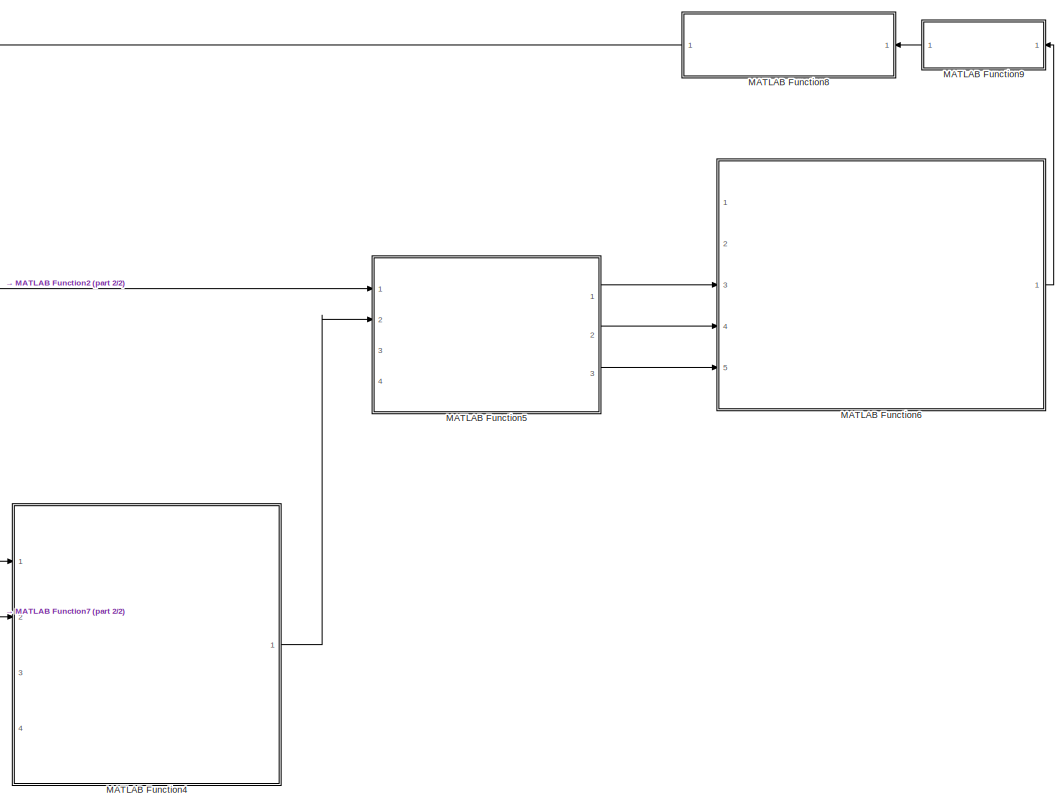
[diagram: root canvas - part 1/2, right side, full height]
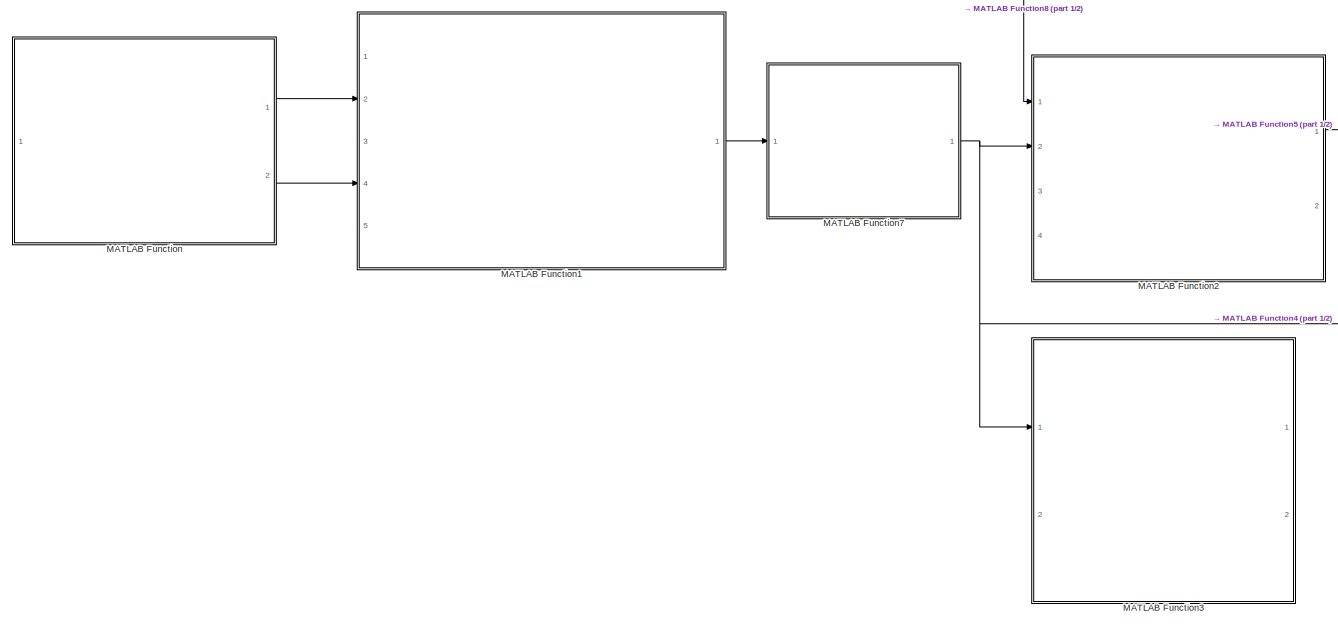
[diagram: root canvas - part 2/2, left side, full height]
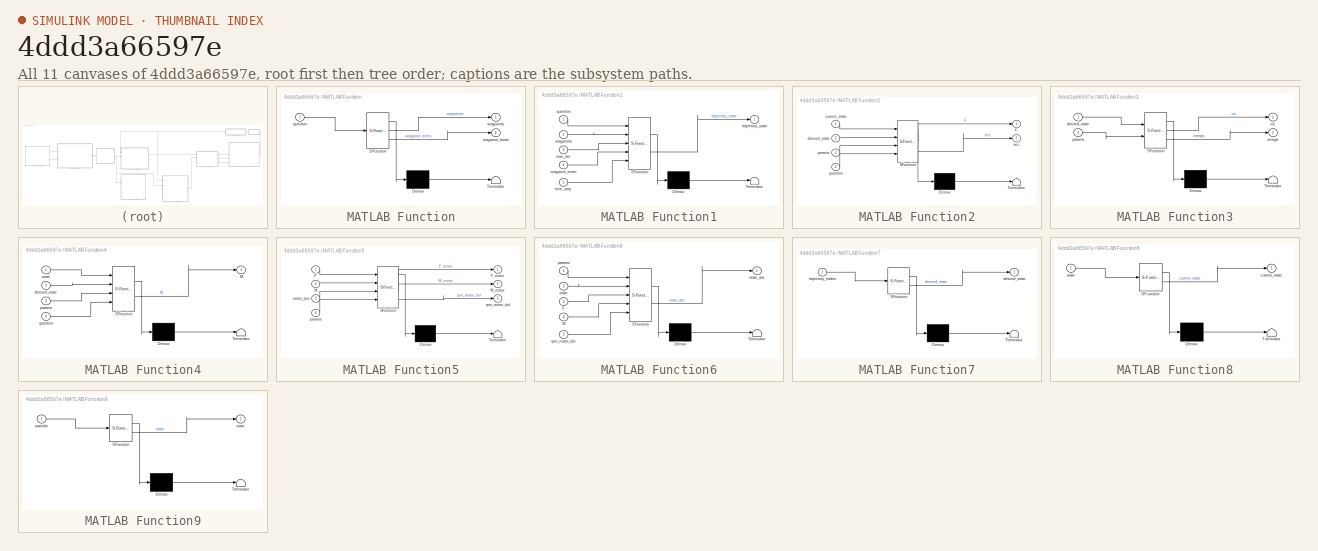
[diagram: thumbnail index - all 11 canvases of the model, root first then tree order]
MODEL slx_4ddd3a66597e
KIND model
CONFIG AbsTol = auto
CONFIG EnableMultiTasking = off
CONFIG FixedStep = auto
CONFIG MaxStep = auto
CONFIG MinStep = auto
CONFIG RelTol = 1e-3
CONFIG SampleTimeConstraint = Unconstrained
CONFIG SolverName = VariableStepAuto
CONFIG StartTime = 0.0
CONFIG StopTime = 10.0
BLOCK [SubSystem] MATLAB Function
  ErrorFcn = Stateflow.Translate.translate
  PermitHierarchicalResolution = ExplicitOnly
  Ports = [1, 2]
  RequestExecContextInheritance = off
  SFBlockType = MATLAB Function
  TreatAsAtomicUnit = on
BLOCK [Demux] MATLAB Function/ Demux 
  Outputs = 1
  Ports = [1, 1]
BLOCK [S-Function] MATLAB Function/ SFunction 
  EnableBusSupport = off
  FunctionName = sf_sfun
  PortCounts = [1 3]
  Ports = [1, 3]
  SFcnIsStateOwnerBlock = off
  SFunctionDeploymentMode = off
  Tag = Stateflow S-Function 2
BLOCK [Terminator] MATLAB Function/ Terminator 
BLOCK [Inport] MATLAB Function/question
BLOCK [Outport] MATLAB Function/waypoint_times
  Port = 2
BLOCK [Outport] MATLAB Function/waypoints
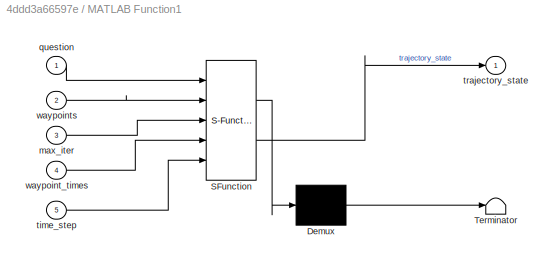
BLOCK [SubSystem] MATLAB Function1
  ErrorFcn = Stateflow.Translate.translate
  PermitHierarchicalResolution = ExplicitOnly
  Ports = [5, 1]
  RequestExecContextInheritance = off
  SFBlockType = MATLAB Function
  TreatAsAtomicUnit = on
BLOCK [Demux] MATLAB Function1/ Demux 
  Outputs = 1
  Ports = [1, 1]
BLOCK [S-Function] MATLAB Function1/ SFunction 
  EnableBusSupport = off
  FunctionName = sf_sfun
  PortCounts = [5 2]
  Ports = [5, 2]
  SFcnIsStateOwnerBlock = off
  SFunctionDeploymentMode = off
  Tag = Stateflow S-Function 1
BLOCK [Terminator] MATLAB Function1/ Terminator 
BLOCK [Inport] MATLAB Function1/max_iter
  Port = 3
BLOCK [Inport] MATLAB Function1/question
BLOCK [Inport] MATLAB Function1/time_step
  Port = 5
BLOCK [Outport] MATLAB Function1/trajectory_state
BLOCK [Inport] MATLAB Function1/waypoint_times
  Port = 4
BLOCK [Inport] MATLAB Function1/waypoints
  Port = 2
BLOCK [SubSystem] MATLAB Function2
  ErrorFcn = Stateflow.Translate.translate
  PermitHierarchicalResolution = ExplicitOnly
  Ports = [4, 2]
  RequestExecContextInheritance = off
  SFBlockType = MATLAB Function
  TreatAsAtomicUnit = on
BLOCK [Demux] MATLAB Function2/ Demux 
  Outputs = 1
  Ports = [1, 1]
BLOCK [S-Function] MATLAB Function2/ SFunction 
  EnableBusSupport = off
  FunctionName = sf_sfun
  PortCounts = [4 3]
  Ports = [4, 3]
  SFcnIsStateOwnerBlock = off
  SFunctionDeploymentMode = off
  Tag = Stateflow S-Function 3
BLOCK [Terminator] MATLAB Function2/ Terminator 
BLOCK [Outport] MATLAB Function2/F
BLOCK [Outport] MATLAB Function2/acc
  Port = 2
BLOCK [Inport] MATLAB Function2/current_state
BLOCK [Inport] MATLAB Function2/desired_state
  Port = 2
BLOCK [Inport] MATLAB Function2/params
  Port = 3
BLOCK [Inport] MATLAB Function2/question
  Port = 4
BLOCK [SubSystem] MATLAB Function3
  ErrorFcn = Stateflow.Translate.translate
  PermitHierarchicalResolution = ExplicitOnly
  Ports = [2, 2]
  RequestExecContextInheritance = off
  SFBlockType = MATLAB Function
  TreatAsAtomicUnit = on
BLOCK [Demux] MATLAB Function3/ Demux 
  Outputs = 1
  Ports = [1, 1]
BLOCK [S-Function] MATLAB Function3/ SFunction 
  EnableBusSupport = off
  FunctionName = sf_sfun
  PortCounts = [2 3]
  Ports = [2, 3]
  SFcnIsStateOwnerBlock = off
  SFunctionDeploymentMode = off
  Tag = Stateflow S-Function 4
BLOCK [Terminator] MATLAB Function3/ Terminator 
BLOCK [Inport] MATLAB Function3/desired_state
BLOCK [Outport] MATLAB Function3/omega
  Port = 2
BLOCK [Inport] MATLAB Function3/params
  Port = 2
BLOCK [Outport] MATLAB Function3/rot
BLOCK [SubSystem] MATLAB Function4
  ErrorFcn = Stateflow.Translate.translate
  PermitHierarchicalResolution = ExplicitOnly
  Ports = [4, 1]
  RequestExecContextInheritance = off
  SFBlockType = MATLAB Function
  TreatAsAtomicUnit = on
BLOCK [Demux] MATLAB Function4/ Demux 
  Outputs = 1
  Ports = [1, 1]
BLOCK [S-Function] MATLAB Function4/ SFunction 
  EnableBusSupport = off
  FunctionName = sf_sfun
  PortCounts = [4 2]
  Ports = [4, 2]
  SFcnIsStateOwnerBlock = off
  SFunctionDeploymentMode = off
  Tag = Stateflow S-Function 5
BLOCK [Terminator] MATLAB Function4/ Terminator 
BLOCK [Outport] MATLAB Function4/M
BLOCK [Inport] MATLAB Function4/desired_state
  Port = 2
BLOCK [Inport] MATLAB Function4/params
  Port = 3
BLOCK [Inport] MATLAB Function4/question
  Port = 4
BLOCK [Inport] MATLAB Function4/state
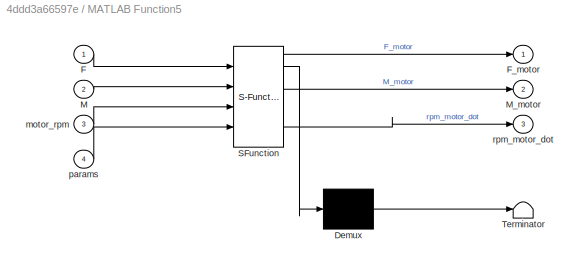
BLOCK [SubSystem] MATLAB Function5
  ErrorFcn = Stateflow.Translate.translate
  PermitHierarchicalResolution = ExplicitOnly
  Ports = [4, 3]
  RequestExecContextInheritance = off
  SFBlockType = MATLAB Function
  TreatAsAtomicUnit = on
BLOCK [Demux] MATLAB Function5/ Demux 
  Outputs = 1
  Ports = [1, 1]
BLOCK [S-Function] MATLAB Function5/ SFunction 
  EnableBusSupport = off
  FunctionName = sf_sfun
  PortCounts = [4 4]
  Ports = [4, 4]
  SFcnIsStateOwnerBlock = off
  SFunctionDeploymentMode = off
  Tag = Stateflow S-Function 6
BLOCK [Terminator] MATLAB Function5/ Terminator 
BLOCK [Inport] MATLAB Function5/F
BLOCK [Outport] MATLAB Function5/F_motor
BLOCK [Inport] MATLAB Function5/M
  Port = 2
BLOCK [Outport] MATLAB Function5/M_motor
  Port = 2
BLOCK [Inport] MATLAB Function5/motor_rpm
  Port = 3
BLOCK [Inport] MATLAB Function5/params
  Port = 4
BLOCK [Outport] MATLAB Function5/rpm_motor_dot
  Port = 3
BLOCK [SubSystem] MATLAB Function6
  ErrorFcn = Stateflow.Translate.translate
  PermitHierarchicalResolution = ExplicitOnly
  Ports = [5, 1]
  RequestExecContextInheritance = off
  SFBlockType = MATLAB Function
  TreatAsAtomicUnit = on
BLOCK [Demux] MATLAB Function6/ Demux 
  Outputs = 1
  Ports = [1, 1]
BLOCK [S-Function] MATLAB Function6/ SFunction 
  EnableBusSupport = off
  FunctionName = sf_sfun
  PortCounts = [5 2]
  Ports = [5, 2]
  SFcnIsStateOwnerBlock = off
  SFunctionDeploymentMode = off
  Tag = Stateflow S-Function 7
BLOCK [Terminator] MATLAB Function6/ Terminator 
BLOCK [Inport] MATLAB Function6/F
  Port = 3
BLOCK [Inport] MATLAB Function6/M
  Port = 4
BLOCK [Inport] MATLAB Function6/params
BLOCK [Inport] MATLAB Function6/rpm_motor_dot
  Port = 5
BLOCK [Inport] MATLAB Function6/state
  Port = 2
BLOCK [Outport] MATLAB Function6/state_dot
BLOCK [SubSystem] MATLAB Function7
  ErrorFcn = Stateflow.Translate.translate
  PermitHierarchicalResolution = ExplicitOnly
  Ports = [1, 1]
  RequestExecContextInheritance = off
  SFBlockType = MATLAB Function
  TreatAsAtomicUnit = on
BLOCK [Demux] MATLAB Function7/ Demux 
  Outputs = 1
  Ports = [1, 1]
BLOCK [S-Function] MATLAB Function7/ SFunction 
  EnableBusSupport = off
  FunctionName = sf_sfun
  PortCounts = [1 2]
  Ports = [1, 2]
  SFcnIsStateOwnerBlock = off
  SFunctionDeploymentMode = off
  Tag = Stateflow S-Function 8
BLOCK [Terminator] MATLAB Function7/ Terminator 
BLOCK [Outport] MATLAB Function7/desired_state
BLOCK [Inport] MATLAB Function7/trajectory_matrix
BLOCK [SubSystem] MATLAB Function8
  ErrorFcn = Stateflow.Translate.translate
  PermitHierarchicalResolution = ExplicitOnly
  Ports = [1, 1]
  RequestExecContextInheritance = off
  SFBlockType = MATLAB Function
  TreatAsAtomicUnit = on
BLOCK [Demux] MATLAB Function8/ Demux 
  Outputs = 1
  Ports = [1, 1]
BLOCK [S-Function] MATLAB Function8/ SFunction 
  EnableBusSupport = off
  FunctionName = sf_sfun
  PortCounts = [1 2]
  Ports = [1, 2]
  SFcnIsStateOwnerBlock = off
  SFunctionDeploymentMode = off
  Tag = Stateflow S-Function 9
BLOCK [Terminator] MATLAB Function8/ Terminator 
BLOCK [Outport] MATLAB Function8/current_state
BLOCK [Inport] MATLAB Function8/state
BLOCK [SubSystem] MATLAB Function9
  ErrorFcn = Stateflow.Translate.translate
  PermitHierarchicalResolution = ExplicitOnly
  Ports = [1, 1]
  RequestExecContextInheritance = off
  SFBlockType = MATLAB Function
  TreatAsAtomicUnit = on
BLOCK [Demux] MATLAB Function9/ Demux 
  Outputs = 1
  Ports = [1, 1]
BLOCK [S-Function] MATLAB Function9/ SFunction 
  EnableBusSupport = off
  FunctionName = sf_sfun
  PortCounts = [1 2]
  Ports = [1, 2]
  SFcnIsStateOwnerBlock = off
  SFunctionDeploymentMode = off
  Tag = Stateflow S-Function 10
BLOCK [Terminator] MATLAB Function9/ Terminator 
BLOCK [Outport] MATLAB Function9/state
BLOCK [Inport] MATLAB Function9/statedot
LINE MATLAB Function1:1 -> MATLAB Function7:1
LINE MATLAB Function2:1 -> MATLAB Function5:1
LINE MATLAB Function4:1 -> MATLAB Function5:2
LINE MATLAB Function5:1 -> MATLAB Function6:3
LINE MATLAB Function5:2 -> MATLAB Function6:4
LINE MATLAB Function5:3 -> MATLAB Function6:5
LINE MATLAB Function6:1 -> MATLAB Function9:1
NET MATLAB Function7:1 -> MATLAB Function2:2, MATLAB Function3:1, MATLAB Function4:2
NET MATLAB Function8:1 -> MATLAB Function2:1, MATLAB Function4:1
LINE MATLAB Function9:1 -> MATLAB Function8:1
LINE MATLAB Function:1 -> MATLAB Function1:2
LINE MATLAB Function:2 -> MATLAB Function1:4
note: NET lines group one-source signal fan-out (src -> all destinations, sorted); 1:1 wires keep LINE
CHART MATLAB Function1 states=1 transitions=1
  STATE_LABEL 'eML_blk_kernel()'
  STATE_LABEL 'SCRIPT:\nfunction trajectory_state = trajectory_planner(question, waypoints, max_iter, waypoint_times, time_step)\n\n% Input parameters\n% \n%   question: Which question we are on in the assignment\n%\n%   waypoints: Series of points in [x; y; z; yaw] format\n%\n%   max_iter: Number of time steps\n%\n%   waypoint_times: Time we should be at each waypoint\n%\n%   time_step: Length of one time_step\n%\n% Output pa...<+880ch>'
CHART MATLAB Function states=1 transitions=1
  STATE_LABEL 'eML_blk_kernel()'
  STATE_LABEL 'SCRIPT:\nfunction [waypoints, waypoint_times] = lookup_waypoints(question)\n%\n% Input parameters\n%\n%   question: which question of the project we are on \n%      Possible arguments for question: 2, 3, 5, 6.2, 6.3, 6.5, 7, 9, 10\n%\n% Output parameters\n%\n%   waypoints: of the form [x; y; z; yaw]\n% \n%   waypoint_times: [1 x n] vector of times where n is the number of waypoings, \n%   represents the second...<+288ch>'
CHART MATLAB Function2 states=1 transitions=1
  STATE_LABEL 'eML_blk_kernel()'
  STATE_LABEL 'SCRIPT:\nfunction [F, acc] = position_controller(current_state, desired_state, params, question)\n\n% Input parameters\n% \n%   current_state: The current state of the robot with the following fields:\n%   current_state.pos = [x; y; z], \n%   current_state.vel = [x_dot; y_dot; z_dot],\n%   current_state.rot = [phi; theta; psi], \n%   current_state.omega = [phidot; thetadot; psidot]\n%   current_state.rpm = ...<+654ch>'
CHART MATLAB Function3 states=1 transitions=1
  STATE_LABEL 'eML_blk_kernel()'
  STATE_LABEL 'SCRIPT:\nfunction [rot, omega] = attitude_planner(desired_state, params)\n\n% Input parameters\n%\n%   desired_state: The desired states are:\n%   desired_state.pos = [x; y; z], \n%   desired_state.vel = [x_dot; y_dot; z_dot],\n%   desired_state.rot = [phi; theta; psi], \n%   desired_state.omega = [phidot; thetadot; psidot]\n%   desired_state.acc = [xdotdot; ydotdot; zdotdot];\n%\n%   params: Quadcopter param...<+261ch>'
CHART MATLAB Function4 states=1 transitions=1
  STATE_LABEL 'eML_blk_kernel()'
  STATE_LABEL 'SCRIPT:\nfunction M  = attitude_controller(state,desired_state,params,question)\n\n% Input parameters\n% \n%   current_state: The current state of the robot with the following fields:\n%   current_state.pos = [x; y; z], \n%   current_state.vel = [x_dot; y_dot; z_dot],\n%   current_state.rot = [phi; theta; psi], \n%   current_state.omega = [phidot; thetadot; psidot]\n%   current_state.rpm = [w1; w2; w3; w4];...<+594ch>'
CHART MATLAB Function5 states=1 transitions=1
  STATE_LABEL 'eML_blk_kernel()'
  STATE_LABEL "SCRIPT:\nfunction [F_motor,M_motor,rpm_motor_dot] = motor_model(F,M,motor_rpm,params)\n\n% Input parameters\n% \n%   F,M: required force and moment\n%\n%   motor_rpm: current motor RPM\n%\n%   params: Quadcopter parameters\n%\n% Output parameters\n%\n%   F_motor: Actual thrust generated by Quadcopter's Motors\n%\n%   M_motor: Actual Moment generated by the Quadcopter's Motors\n%\n%   rpm_dot: Derivative of the RPM...<+78ch>"
CHART MATLAB Function6 states=1 transitions=1
  STATE_LABEL 'eML_blk_kernel()'
  STATE_LABEL 'SCRIPT:\nfunction state_dot  = dynamics(params, state, F, M, rpm_motor_dot)\n% Input parameters\n% \n%   state: current state, will be using ode45 to update\n%\n%   F, M: actual force and moment from motor model\n%\n%   rpm_motor_dot: actual change in RPM from motor model\n% \n%   params: Quadcopter parameters\n%\n%   question: Question number\n%\n% Output parameters\n%\n%   state_dot: change in state\n%\n%********...<+67ch>'
CHART MATLAB Function7 states=1 transitions=1
  STATE_LABEL 'eML_blk_kernel()'
  STATE_LABEL 'SCRIPT:\nfunction desired_state = trj_mat_to_des_state(trajectory_matrix)\n\ndesired_state.pos = trajectory_matrix(1:3,iter);\ndesired_state.vel = trajectory_matrix(4:6,iter);\ndesired_state.rot = trajectory_matrix(7:9,iter);\ndesired_state.omega = trajectory_matrix(10:12,iter);\ndesired_state.acc = trajectory_matrix(13:15,iter);\n'
CHART MATLAB Function8 states=1 transitions=1
  STATE_LABEL 'eML_blk_kernel()'
  STATE_LABEL 'SCRIPT:\nfunction current_state = state_to_cur_state(state)\ncurrent_state.pos = state(1:3);\ncurrent_state.vel = state(4:6);\ncurrent_state.rot = state(7:9);\ncurrent_state.omega = state(10:12);\ncurrent_state.rpm = state(13:16);\n'
CHART MATLAB Function9 states=1 transitions=1
  STATE_LABEL 'eML_blk_kernel()'
  STATE_LABEL 'SCRIPT:\nfunction state = ode_solver(statedot)\n\nstate = statedot;\n'
CHART  states=0 transitions=0
CHART  states=0 transitions=0
CHART  states=0 transitions=0
CHART  states=0 transitions=0
CHART  states=0 transitions=0
CHART  states=0 transitions=0
CHART  states=0 transitions=0
CHART  states=0 transitions=0
CHART  states=0 transitions=0
CHART  states=0 transitions=0
